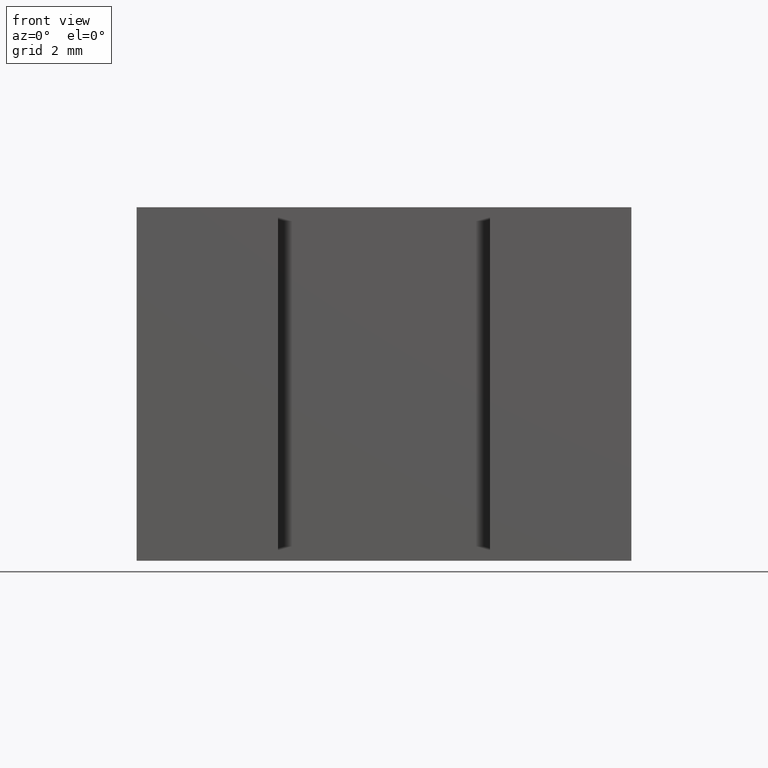
[diagram: clean part render]
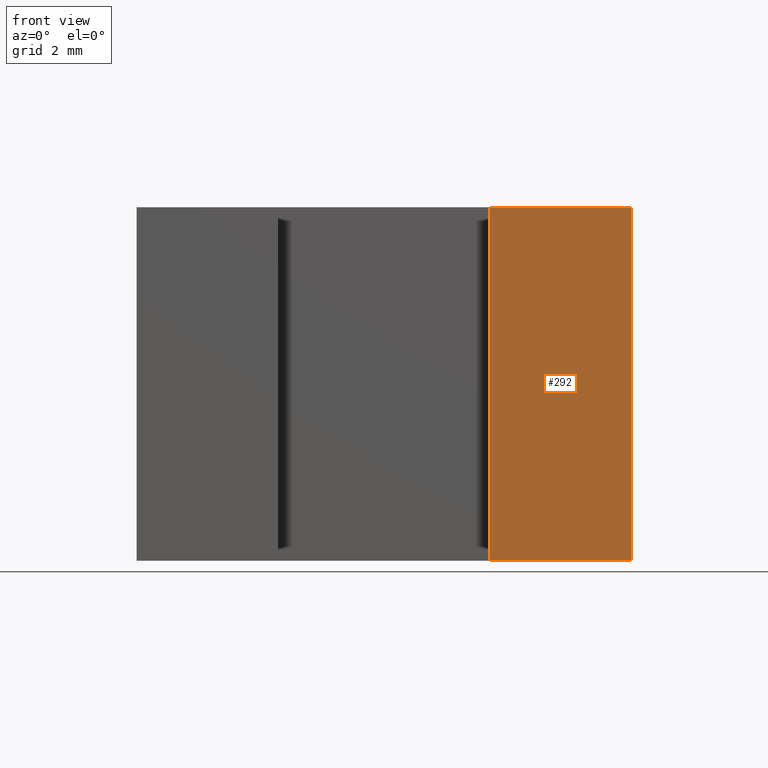
[diagram: same view with one face highlighted and labeled with its STEP entity id]
A machine part, front view. The second image highlights one B-rep face of the part: STEP entity #292.
In plain terms, the highlighted planar face has unit normal (0, -1, 0).
Its self-contained STEP definition (entity closure, byte-faithful):
#29=FACE_OUTER_BOUND('',#44,.T.);
#44=EDGE_LOOP('',(#248,#249,#250,#251));
#49=LINE('',#410,#86);
#62=LINE('',#437,#99);
#83=LINE('',#481,#120);
#84=LINE('',#483,#121);
#86=VECTOR('',#336,10.);
#99=VECTOR('',#353,10.);
#120=VECTOR('',#398,10.);
#121=VECTOR('',#401,10.);
#122=VERTEX_POINT('',#406);
#124=VERTEX_POINT('',#409);
#135=VERTEX_POINT('',#433);
#147=VERTEX_POINT('',#479);
#149=EDGE_CURVE('',#124,#122,#49,.T.);
#163=EDGE_CURVE('',#135,#124,#62,.T.);
#185=EDGE_CURVE('',#122,#147,#83,.T.);
#186=EDGE_CURVE('',#147,#135,#84,.T.);
#248=ORIENTED_EDGE('',*,*,#186,.T.);
#249=ORIENTED_EDGE('',*,*,#163,.T.);
#250=ORIENTED_EDGE('',*,*,#149,.T.);
#251=ORIENTED_EDGE('',*,*,#185,.T.);
#277=PLANE('',#329);
#292=ADVANCED_FACE('',(#29),#277,.T.);
#329=AXIS2_PLACEMENT_3D('',#482,#399,#400);
#336=DIRECTION('',(1.,0.,0.));
#353=DIRECTION('',(0.,0.,-1.));
#398=DIRECTION('',(0.,0.,1.));
#399=DIRECTION('center_axis',(0.,-1.,0.));
#400=DIRECTION('ref_axis',(0.,0.,-1.));
#401=DIRECTION('',(-1.,0.,0.));
#406=CARTESIAN_POINT('',(7.,0.,-5.));
#409=CARTESIAN_POINT('',(3.,0.,-5.));
#410=CARTESIAN_POINT('',(7.,0.,-5.));
#433=CARTESIAN_POINT('',(3.,0.,5.));
#437=CARTESIAN_POINT('',(3.,0.,0.));
#479=CARTESIAN_POINT('',(7.,0.,5.));
#481=CARTESIAN_POINT('',(7.,0.,0.));
#482=CARTESIAN_POINT('Origin',(7.,0.,0.));
#483=CARTESIAN_POINT('',(7.,0.,5.));